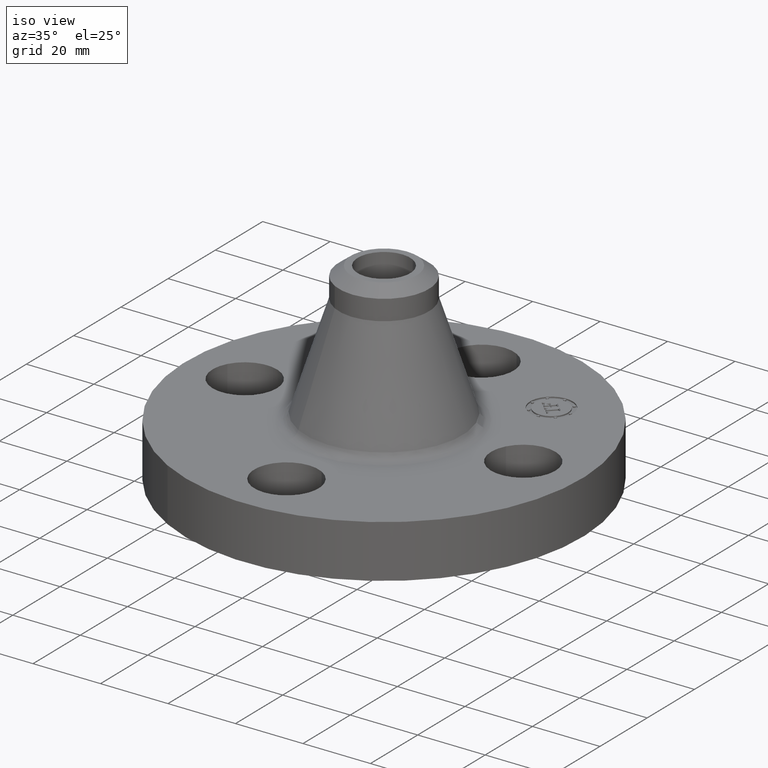
[diagram: clean part render]
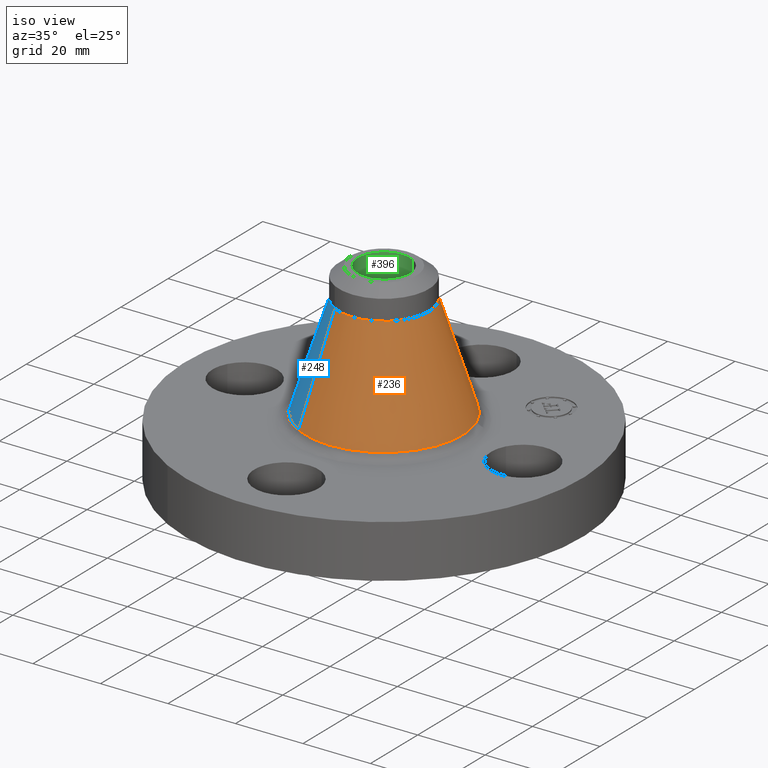
[diagram: same view with three faces highlighted in distinct colors, each labeled with its STEP entity id]
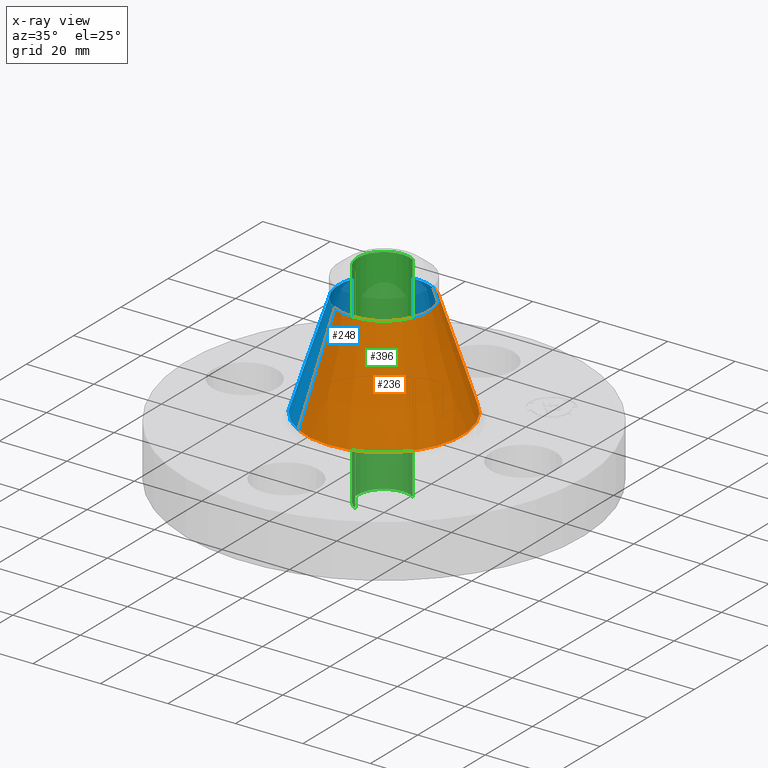
[diagram: x-ray of the same camera — body ghosted, the three highlighted faces saturated]
A machine part, iso view with three faces highlighted in distinct colors.
The next image is the same camera in x-ray (body ghosted, the three faces saturated) — at least one of them is partly hidden behind the body in this view.
Their STEP definitions:

[orange] entity #236 — the highlighted conical surface has half-angle 17.883 deg.
#172=AXIS2_PLACEMENT_3D('Circle Axis2P3D',#170,#171,$) ;
#209=AXIS2_PLACEMENT_3D('Cone Axis2P3D',#206,#207,#208) ;
#220=AXIS2_PLACEMENT_3D('Circle Axis2P3D',#218,#219,$) ;
#167=CARTESIAN_POINT('Vertex',(0.437797012116,0.801382055282,0.703150699569)) ;
#170=CARTESIAN_POINT('Axis2P3D Location',(0.,0.,0.703150699569)) ;
#174=CARTESIAN_POINT('Vertex',(-0.437797012116,-0.801382055282,0.703150699569)) ;
#206=CARTESIAN_POINT('Axis2P3D Location',(0.,0.,1.90615436507)) ;
#211=CARTESIAN_POINT('Line Origine',(0.344747709942,0.631056450138,1.30465253232)) ;
#215=CARTESIAN_POINT('Vertex',(0.251698407768,0.460730844994,1.90615436507)) ;
#218=CARTESIAN_POINT('Axis2P3D Location',(0.,0.,1.90615436507)) ;
#222=CARTESIAN_POINT('Vertex',(-0.251698407768,-0.460730844994,1.90615436507)) ;
#225=CARTESIAN_POINT('Line Origine',(-0.344747709942,-0.631056450138,1.30465253232)) ;
#171=DIRECTION('Axis2P3D Direction',(0.,0.,-0.0393700787402)) ;
#207=DIRECTION('Axis2P3D Direction',(0.,0.,-0.0393700787402)) ;
#208=DIRECTION('Axis2P3D XDirection',(-0.0188750212049,-0.0345504945626,0.)) ;
#212=DIRECTION('Vector Direction',(0.00579609439236,0.0106096796191,-0.0374678940986)) ;
#219=DIRECTION('Axis2P3D Direction',(0.,0.,-0.0393700787402)) ;
#226=DIRECTION('Vector Direction',(-0.00579609439236,-0.0106096796191,-0.0374678940986)) ;
#213=VECTOR('Line Direction',#212,0.0393700787402) ;
#227=VECTOR('Line Direction',#226,0.0393700787402) ;
#231=ORIENTED_EDGE('',*,*,#176,.F.) ;
#232=ORIENTED_EDGE('',*,*,#217,.T.) ;
#233=ORIENTED_EDGE('',*,*,#224,.T.) ;
#234=ORIENTED_EDGE('',*,*,#229,.F.) ;
#236=ADVANCED_FACE('PartBody',(#235),#210,.T.) ;
#173=CIRCLE('generated circle',#172,0.91316998546) ;
#221=CIRCLE('generated circle',#220,0.525000000002) ;
#210=CONICAL_SURFACE('Cone',#209,0.525000000002,0.312120637866) ;
#176=EDGE_CURVE('',#168,#175,#173,.T.) ;
#217=EDGE_CURVE('',#168,#216,#214,.F.) ;
#224=EDGE_CURVE('',#216,#223,#221,.T.) ;
#229=EDGE_CURVE('',#175,#223,#228,.F.) ;
#230=EDGE_LOOP('',(#231,#232,#233,#234)) ;
#235=FACE_OUTER_BOUND('',#230,.T.) ;
#214=LINE('Line',#211,#213) ;
#228=LINE('Line',#225,#227) ;
#168=VERTEX_POINT('',#167) ;
#175=VERTEX_POINT('',#174) ;
#216=VERTEX_POINT('',#215) ;
#223=VERTEX_POINT('',#222) ;

[blue] entity #248 — the highlighted conical surface has half-angle 17.883 deg.
#196=AXIS2_PLACEMENT_3D('Circle Axis2P3D',#194,#195,$) ;
#209=AXIS2_PLACEMENT_3D('Cone Axis2P3D',#206,#207,#208) ;
#239=AXIS2_PLACEMENT_3D('Circle Axis2P3D',#237,#238,$) ;
#167=CARTESIAN_POINT('Vertex',(0.437797012116,0.801382055282,0.703150699569)) ;
#174=CARTESIAN_POINT('Vertex',(-0.437797012116,-0.801382055282,0.703150699569)) ;
#194=CARTESIAN_POINT('Axis2P3D Location',(0.,0.,0.703150699569)) ;
#206=CARTESIAN_POINT('Axis2P3D Location',(0.,0.,1.90615436507)) ;
#211=CARTESIAN_POINT('Line Origine',(0.344747709942,0.631056450138,1.30465253232)) ;
#215=CARTESIAN_POINT('Vertex',(0.251698407768,0.460730844994,1.90615436507)) ;
#222=CARTESIAN_POINT('Vertex',(-0.251698407768,-0.460730844994,1.90615436507)) ;
#225=CARTESIAN_POINT('Line Origine',(-0.344747709942,-0.631056450138,1.30465253232)) ;
#237=CARTESIAN_POINT('Axis2P3D Location',(0.,0.,1.90615436507)) ;
#195=DIRECTION('Axis2P3D Direction',(0.,0.,-0.0393700787402)) ;
#207=DIRECTION('Axis2P3D Direction',(0.,0.,-0.0393700787402)) ;
#208=DIRECTION('Axis2P3D XDirection',(-0.0188750212049,-0.0345504945626,0.)) ;
#212=DIRECTION('Vector Direction',(0.00579609439236,0.0106096796191,-0.0374678940986)) ;
#226=DIRECTION('Vector Direction',(-0.00579609439236,-0.0106096796191,-0.0374678940986)) ;
#238=DIRECTION('Axis2P3D Direction',(0.,0.,-0.0393700787402)) ;
#213=VECTOR('Line Direction',#212,0.0393700787402) ;
#227=VECTOR('Line Direction',#226,0.0393700787402) ;
#243=ORIENTED_EDGE('',*,*,#198,.F.) ;
#244=ORIENTED_EDGE('',*,*,#229,.T.) ;
#245=ORIENTED_EDGE('',*,*,#241,.T.) ;
#246=ORIENTED_EDGE('',*,*,#217,.F.) ;
#248=ADVANCED_FACE('PartBody',(#247),#210,.T.) ;
#197=CIRCLE('generated circle',#196,0.91316998546) ;
#240=CIRCLE('generated circle',#239,0.525000000002) ;
#210=CONICAL_SURFACE('Cone',#209,0.525000000002,0.312120637866) ;
#198=EDGE_CURVE('',#175,#168,#197,.T.) ;
#217=EDGE_CURVE('',#168,#216,#214,.F.) ;
#229=EDGE_CURVE('',#175,#223,#228,.F.) ;
#241=EDGE_CURVE('',#223,#216,#240,.T.) ;
#242=EDGE_LOOP('',(#243,#244,#245,#246)) ;
#247=FACE_OUTER_BOUND('',#242,.T.) ;
#214=LINE('Line',#211,#213) ;
#228=LINE('Line',#225,#227) ;
#168=VERTEX_POINT('',#167) ;
#175=VERTEX_POINT('',#174) ;
#216=VERTEX_POINT('',#215) ;
#223=VERTEX_POINT('',#222) ;

[green] entity #396 — the highlighted cylindrical surface (edge-blend (fillet) strip) has radius 7.7724 mm, axis along (0, 0, -1).
#343=AXIS2_PLACEMENT_3D('Cylinder Axis2P3D',#340,#341,#342) ;
#382=AXIS2_PLACEMENT_3D('Circle Axis2P3D',#380,#381,$) ;
#387=AXIS2_PLACEMENT_3D('Circle Axis2P3D',#385,#386,$) ;
#340=CARTESIAN_POINT('Axis2P3D Location',(0.,0.,1.)) ;
#349=CARTESIAN_POINT('Vertex',(0.146704214813,0.26854026394,2.25000000001)) ;
#351=CARTESIAN_POINT('Vertex',(-0.146704214813,-0.26854026394,2.25000000001)) ;
#354=CARTESIAN_POINT('Line Origine',(0.146704214813,0.26854026394,1.)) ;
#358=CARTESIAN_POINT('Vertex',(0.146704214813,0.26854026394,-0.250000000001)) ;
#365=CARTESIAN_POINT('Vertex',(-0.146704214813,-0.26854026394,-0.250000000001)) ;
#368=CARTESIAN_POINT('Line Origine',(-0.146704214813,-0.26854026394,1.)) ;
#380=CARTESIAN_POINT('Axis2P3D Location',(0.,0.,2.25000000001)) ;
#385=CARTESIAN_POINT('Axis2P3D Location',(0.,0.,-0.250000000001)) ;
#341=DIRECTION('Axis2P3D Direction',(0.,0.,-0.0393700787402)) ;
#342=DIRECTION('Axis2P3D XDirection',(-0.0188750212049,-0.0345504945626,0.)) ;
#355=DIRECTION('Vector Direction',(0.,0.,-0.0393700787402)) ;
#369=DIRECTION('Vector Direction',(0.,0.,-0.0393700787402)) ;
#381=DIRECTION('Axis2P3D Direction',(0.,0.,-0.0393700787402)) ;
#386=DIRECTION('Axis2P3D Direction',(0.,0.,-0.0393700787402)) ;
#356=VECTOR('Line Direction',#355,0.0393700787402) ;
#370=VECTOR('Line Direction',#369,0.0393700787402) ;
#391=ORIENTED_EDGE('',*,*,#384,.F.) ;
#392=ORIENTED_EDGE('',*,*,#372,.T.) ;
#393=ORIENTED_EDGE('',*,*,#389,.T.) ;
#394=ORIENTED_EDGE('',*,*,#360,.F.) ;
#396=ADVANCED_FACE('PartBody',(#395),#344,.F.) ;
#383=CIRCLE('generated circle',#382,0.306000000001) ;
#388=CIRCLE('generated circle',#387,0.306000000001) ;
#344=CYLINDRICAL_SURFACE('generated cylinder',#343,0.306000000001) ;
#360=EDGE_CURVE('',#350,#359,#357,.T.) ;
#372=EDGE_CURVE('',#352,#366,#371,.T.) ;
#384=EDGE_CURVE('',#352,#350,#383,.T.) ;
#389=EDGE_CURVE('',#366,#359,#388,.T.) ;
#390=EDGE_LOOP('',(#391,#392,#393,#394)) ;
#395=FACE_OUTER_BOUND('',#390,.T.) ;
#357=LINE('Line',#354,#356) ;
#371=LINE('Line',#368,#370) ;
#350=VERTEX_POINT('',#349) ;
#352=VERTEX_POINT('',#351) ;
#359=VERTEX_POINT('',#358) ;
#366=VERTEX_POINT('',#365) ;